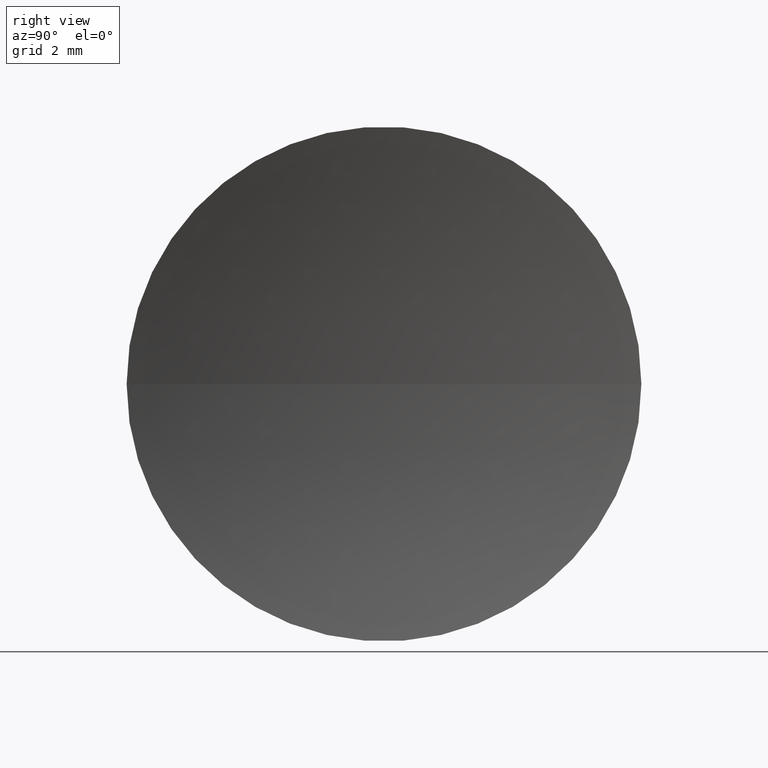
[diagram: clean part render]
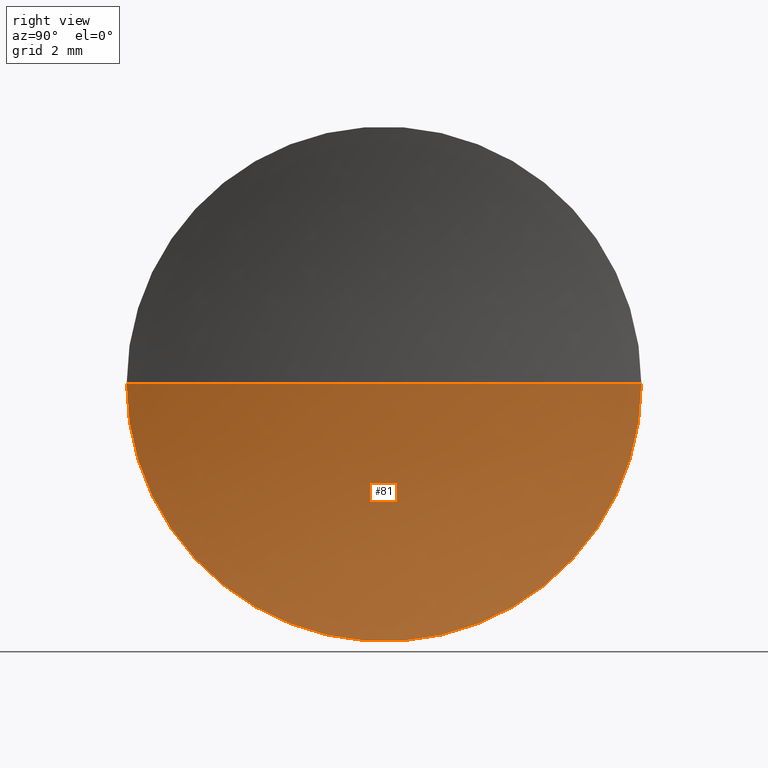
[diagram: same view with one face highlighted and labeled with its STEP entity id]
A machine part, right view. The second image highlights one B-rep face of the part: STEP entity #81.
In plain terms, the highlighted spherical surface has radius 32.5 mm.
Its self-contained STEP definition (entity closure, byte-faithful):
#7 = CIRCLE ( 'NONE', #68, 32.50000000000000000 ) ;
#9 = DIRECTION ( 'NONE',  ( 0.0000000000000000000, 1.000000000000000000, 1.224646799147353500E-016 ) ) ;
#10 = CARTESIAN_POINT ( 'NONE',  ( 78.85442262608158600, 26.06225218280607000, 0.0000000000000000000 ) ) ;
#12 = FACE_OUTER_BOUND ( 'NONE', #145, .T. ) ;
#19 = CARTESIAN_POINT ( 'NONE',  ( 78.85442262608158600, 26.06225218280607000, 0.0000000000000000000 ) ) ;
#27 = CIRCLE ( 'NONE', #77, 32.50000000000000700 ) ;
#40 = EDGE_CURVE ( 'NONE', #132, #87, #134, .T. ) ;
#46 = DIRECTION ( 'NONE',  ( 0.0000000000000000000, 0.0000000000000000000, 1.000000000000000000 ) ) ;
#47 = VERTEX_POINT ( 'NONE', #59 ) ;
#54 = CARTESIAN_POINT ( 'NONE',  ( 47.35442262608158600, 26.06225218280608000, 0.0000000000000000000 ) ) ;
#58 = ORIENTED_EDGE ( 'NONE', *, *, #154, .T. ) ;
#59 = CARTESIAN_POINT ( 'NONE',  ( 46.35442262608157200, 26.06225218280608400, 0.0000000000000000000 ) ) ;
#61 = DIRECTION ( 'NONE',  ( 1.000000000000000000, 0.0000000000000000000, 0.0000000000000000000 ) ) ;
#68 = AXIS2_PLACEMENT_3D ( 'NONE', #10, #46, #61 ) ;
#77 = AXIS2_PLACEMENT_3D ( 'NONE', #103, #116, #9 ) ;
#81 = ADVANCED_FACE ( 'NONE', ( #12 ), #104, .F. ) ;
#87 = VERTEX_POINT ( 'NONE', #124 ) ;
#94 = AXIS2_PLACEMENT_3D ( 'NONE', #19, #152, #163 ) ;
#103 = CARTESIAN_POINT ( 'NONE',  ( 78.85442262608158600, 26.06225218280607000, 0.0000000000000000000 ) ) ;
#104 = SPHERICAL_SURFACE ( 'NONE', #94, 32.50000000000000700 ) ;
#108 = ORIENTED_EDGE ( 'NONE', *, *, #40, .F. ) ;
#116 = DIRECTION ( 'NONE',  ( 4.969917281268344600E-032, 1.224646799147353200E-016, -1.000000000000000000 ) ) ;
#124 = CARTESIAN_POINT ( 'NONE',  ( 47.35442262608158600, 18.06225218280606600, -9.797174393178843400E-016 ) ) ;
#126 = DIRECTION ( 'NONE',  ( -1.000000000000000000, 4.058245434298766700E-016, -0.0000000000000000000 ) ) ;
#132 = VERTEX_POINT ( 'NONE', #150 ) ;
#133 = AXIS2_PLACEMENT_3D ( 'NONE', #54, #126, #136 ) ;
#134 = CIRCLE ( 'NONE', #133, 8.000000000000003600 ) ;
#136 = DIRECTION ( 'NONE',  ( 0.0000000000000000000, -1.000000000000000000, 0.0000000000000000000 ) ) ;
#138 = ORIENTED_EDGE ( 'NONE', *, *, #162, .F. ) ;
#145 = EDGE_LOOP ( 'NONE', ( #138, #108, #58 ) ) ;
#150 = CARTESIAN_POINT ( 'NONE',  ( 47.35442262608158600, 34.06225218280609800, 0.0000000000000000000 ) ) ;
#152 = DIRECTION ( 'NONE',  ( 0.0000000000000000000, 0.0000000000000000000, -1.000000000000000000 ) ) ;
#154 = EDGE_CURVE ( 'NONE', #132, #47, #7, .T. ) ;
#162 = EDGE_CURVE ( 'NONE', #87, #47, #27, .T. ) ;
#163 = DIRECTION ( 'NONE',  ( 4.270088556250601200E-016, 1.000000000000000000, 0.0000000000000000000 ) ) ;